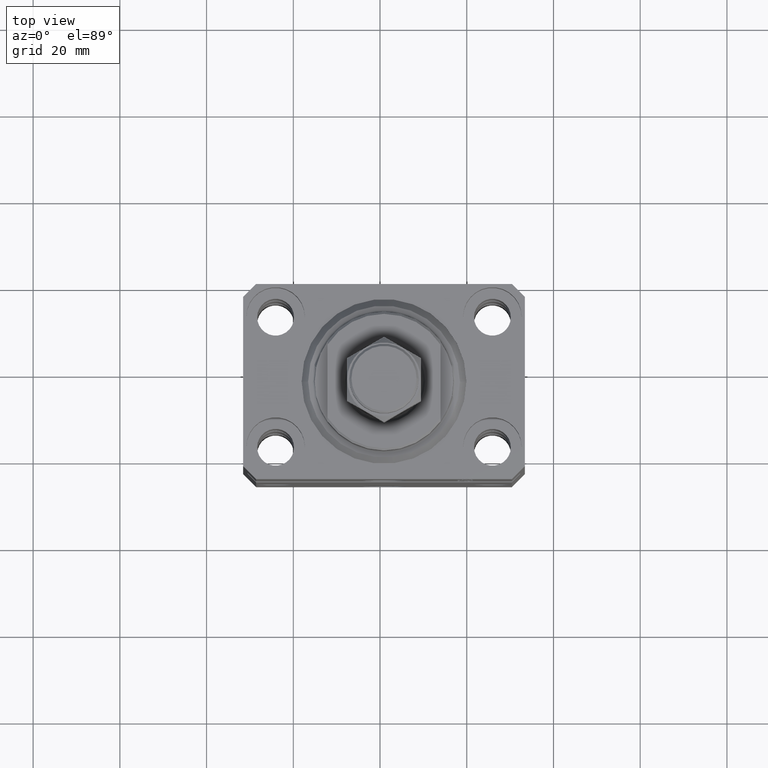
[diagram: clean part render]
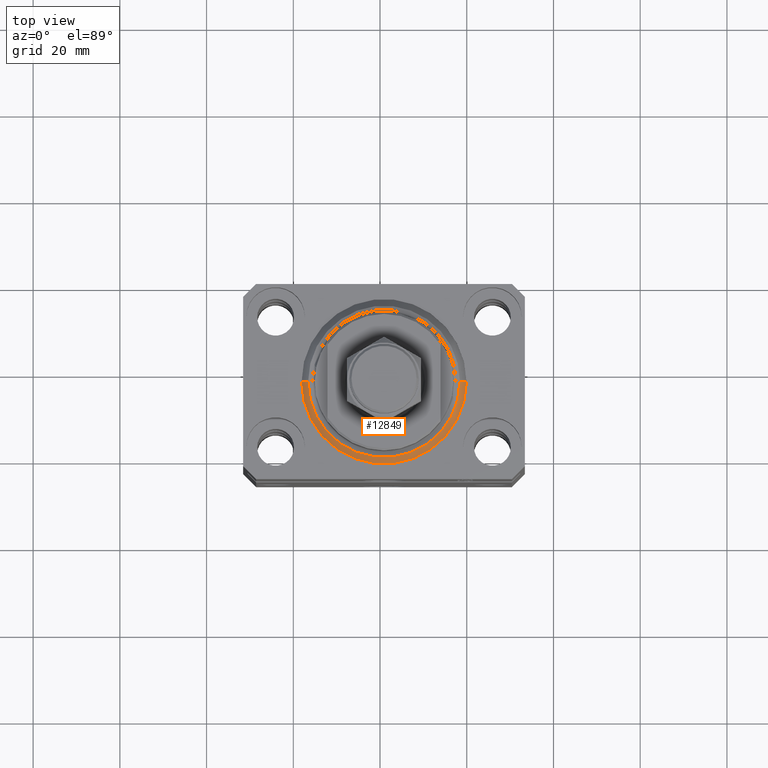
[diagram: same view with one face highlighted and labeled with its STEP entity id]
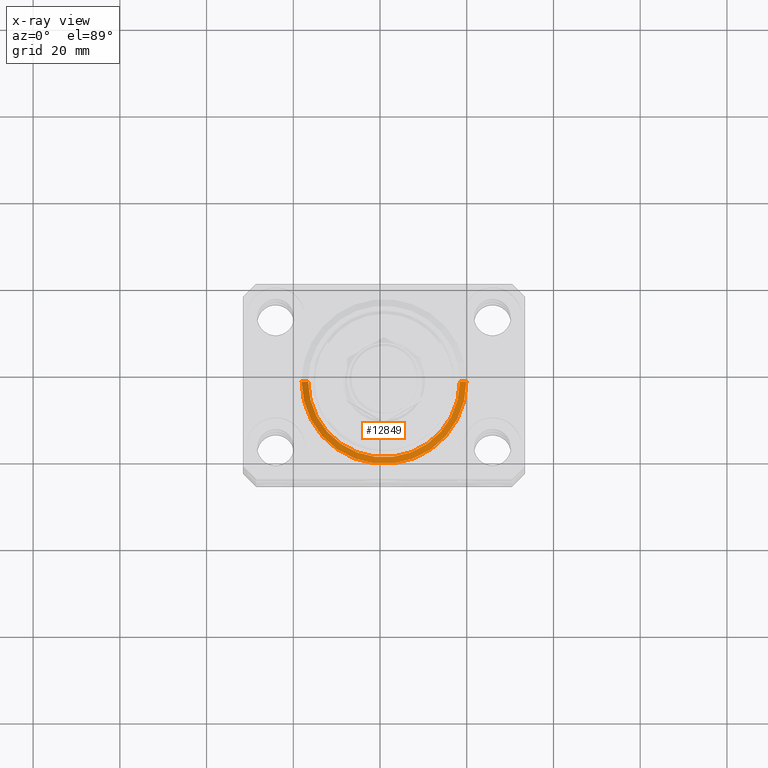
[diagram: x-ray of the same camera — body ghosted, the highlighted face saturated]
A machine part, top view. The second image highlights one B-rep face of the part: STEP entity #12849.
The next image is the same camera in x-ray: the body ghosted, the highlighted face saturated — about 0% of this face is hidden behind the body in this view.
In plain terms, the highlighted conical surface has half-angle 45 deg.
Its self-contained STEP definition (entity closure, byte-faithful):
#1476 = EDGE_CURVE ( 'NONE', #13232, #9523, #7616, .T. ) ;
#2785 = CARTESIAN_POINT ( 'NONE',  ( 0.000000000000000000, 0.000000000000000000, 1.500000000000004885 ) ) ;
#3268 = VECTOR ( 'NONE', #21938, 1000.000000000000000 ) ;
#5893 = CARTESIAN_POINT ( 'NONE',  ( -17.49999999999999289, 2.234980408443919215E-15, 0.000000000000000000 ) ) ;
#6194 = EDGE_CURVE ( 'NONE', #33138, #18656, #44799, .T. ) ;
#7387 = CARTESIAN_POINT ( 'NONE',  ( 19.00000000000000000, 0.000000000000000000, 1.500000000000004885 ) ) ;
#7616 = LINE ( 'NONE', #7387, #3268 ) ;
#9523 = VERTEX_POINT ( 'NONE', #39079 ) ;
#10095 = CARTESIAN_POINT ( 'NONE',  ( 17.49999999999999289, 0.000000000000000000, 0.000000000000000000 ) ) ;
#10785 = CIRCLE ( 'NONE', #16862, 17.49999999999999289 ) ;
#11015 = VECTOR ( 'NONE', #32728, 1000.000000000000000 ) ;
#12478 = ORIENTED_EDGE ( 'NONE', *, *, #45763, .F. ) ;
#12849 = ADVANCED_FACE ( 'NONE', ( #31613 ), #24952, .T. ) ;
#13232 = VERTEX_POINT ( 'NONE', #10095 ) ;
#13994 = DIRECTION ( 'NONE',  ( 1.000000000000000000, 0.000000000000000000, 0.000000000000000000 ) ) ;
#14380 = CARTESIAN_POINT ( 'NONE',  ( -19.00000000000000000, 2.326828918379970970E-15, 1.500000000000004885 ) ) ;
#16862 = AXIS2_PLACEMENT_3D ( 'NONE', #26100, #21587, #25173 ) ;
#18656 = VERTEX_POINT ( 'NONE', #23325 ) ;
#19232 = AXIS2_PLACEMENT_3D ( 'NONE', #2785, #27824, #13994 ) ;
#21587 = DIRECTION ( 'NONE',  ( -0.000000000000000000, -0.000000000000000000, -1.000000000000000000 ) ) ;
#21938 = DIRECTION ( 'NONE',  ( 0.7071067811865483499, 0.000000000000000000, 0.7071067811865467956 ) ) ;
#23233 = EDGE_CURVE ( 'NONE', #18656, #9523, #29149, .T. ) ;
#23325 = CARTESIAN_POINT ( 'NONE',  ( -19.00000000000000000, 0.000000000000000000, 1.500000000000004885 ) ) ;
#24238 = CARTESIAN_POINT ( 'NONE',  ( 0.000000000000000000, 0.000000000000000000, 1.500000000000004885 ) ) ;
#24952 = CONICAL_SURFACE ( 'NONE', #25729, 19.00000000000000000, 0.7853981633974492782 ) ;
#25173 = DIRECTION ( 'NONE',  ( 1.000000000000000000, 0.000000000000000000, 0.000000000000000000 ) ) ;
#25729 = AXIS2_PLACEMENT_3D ( 'NONE', #24238, #39221, #45687 ) ;
#26100 = CARTESIAN_POINT ( 'NONE',  ( 0.000000000000000000, 0.000000000000000000, 0.000000000000000000 ) ) ;
#27824 = DIRECTION ( 'NONE',  ( -0.000000000000000000, -0.000000000000000000, 1.000000000000000000 ) ) ;
#28367 = ORIENTED_EDGE ( 'NONE', *, *, #6194, .F. ) ;
#29149 = CIRCLE ( 'NONE', #19232, 19.00000000000000000 ) ;
#31613 = FACE_OUTER_BOUND ( 'NONE', #46634, .T. ) ;
#32728 = DIRECTION ( 'NONE',  ( -0.7071067811865483499, 8.659560562354943952E-17, 0.7071067811865467956 ) ) ;
#33138 = VERTEX_POINT ( 'NONE', #5893 ) ;
#36147 = ORIENTED_EDGE ( 'NONE', *, *, #23233, .F. ) ;
#38559 = ORIENTED_EDGE ( 'NONE', *, *, #1476, .T. ) ;
#39079 = CARTESIAN_POINT ( 'NONE',  ( 19.00000000000000000, 2.326828918379970970E-15, 1.500000000000004885 ) ) ;
#39221 = DIRECTION ( 'NONE',  ( -0.000000000000000000, -0.000000000000000000, 1.000000000000000000 ) ) ;
#44799 = LINE ( 'NONE', #14380, #11015 ) ;
#45687 = DIRECTION ( 'NONE',  ( 1.000000000000000000, 0.000000000000000000, 0.000000000000000000 ) ) ;
#45763 = EDGE_CURVE ( 'NONE', #13232, #33138, #10785, .T. ) ;
#46634 = EDGE_LOOP ( 'NONE', ( #28367, #12478, #38559, #36147 ) ) ;